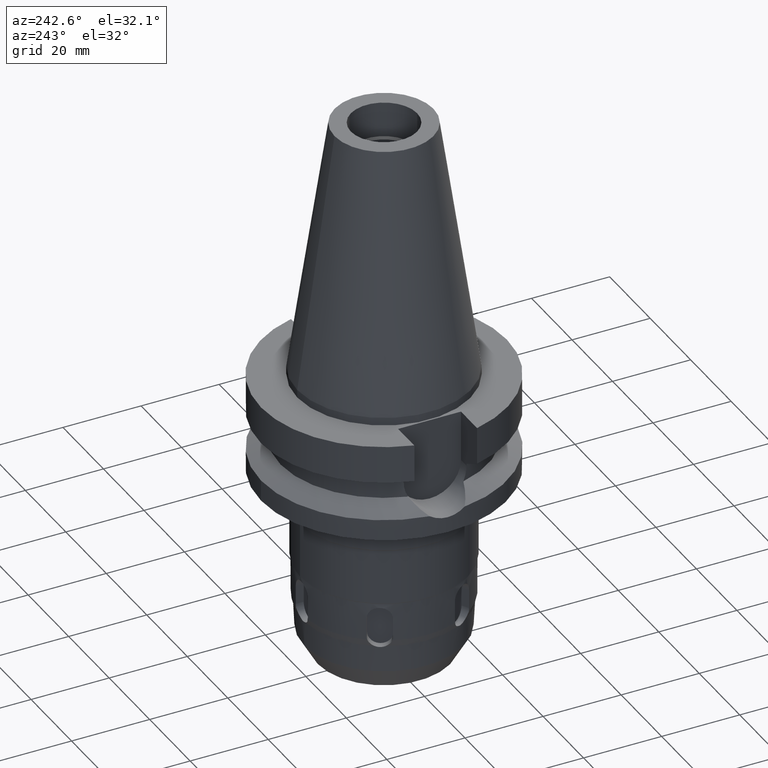
[diagram: clean part render]
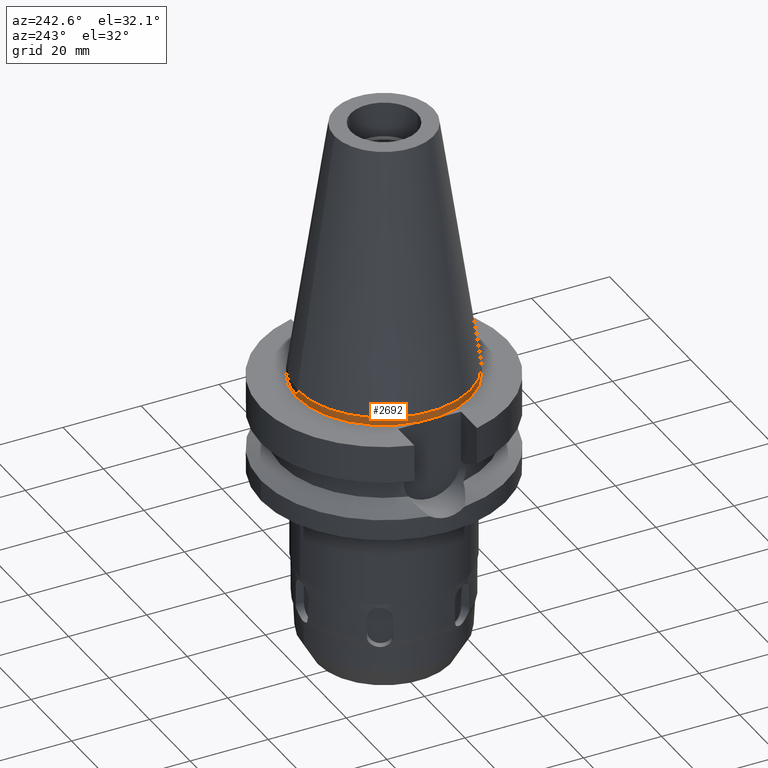
[diagram: same view with one face highlighted and labeled with its STEP entity id]
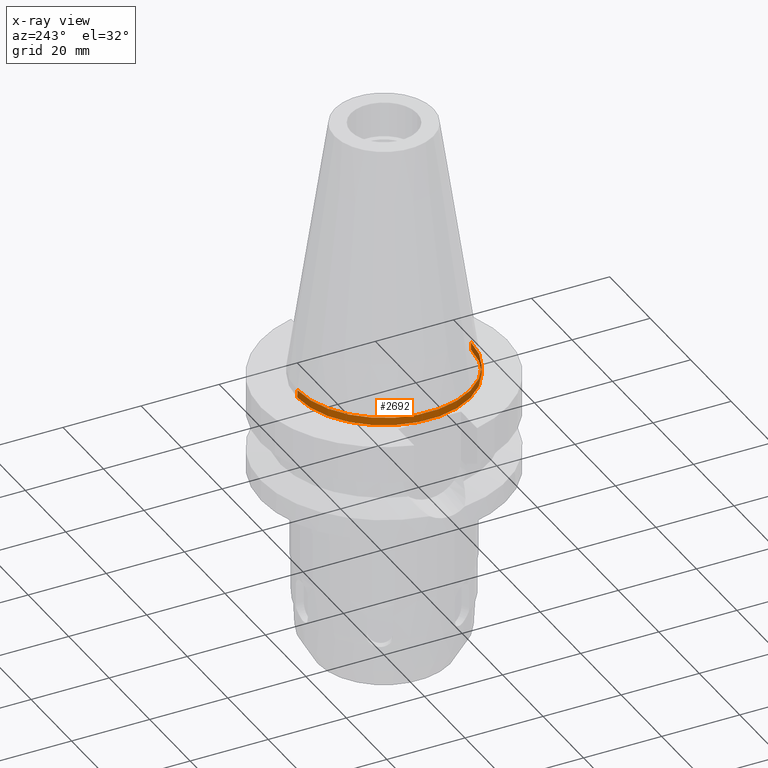
[diagram: x-ray of the same camera — body ghosted, the highlighted face saturated]
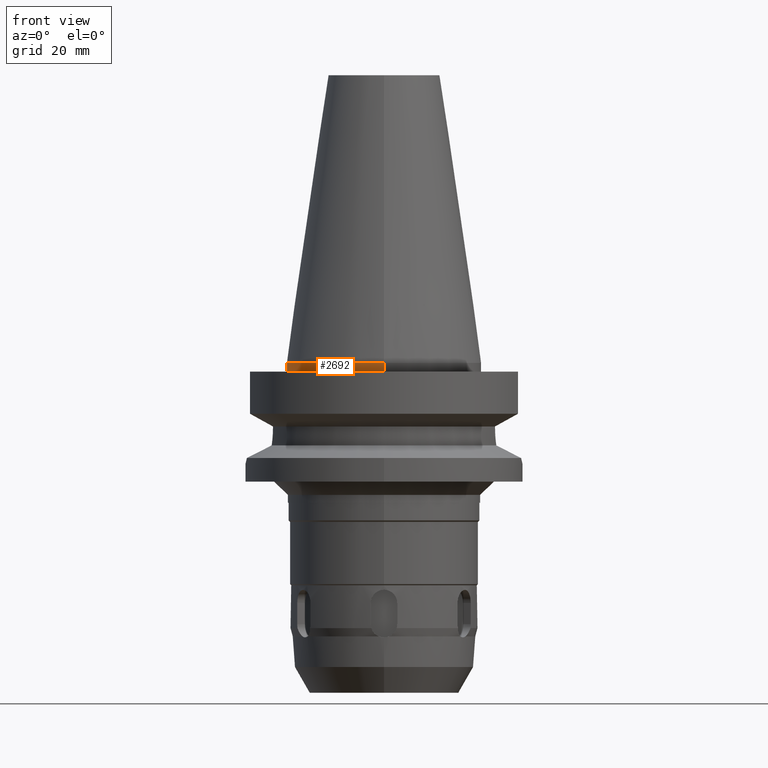
[diagram: same view with one face highlighted and labeled with its STEP entity id]
A machine part, auxiliary view. The second image highlights one B-rep face of the part: STEP entity #2692.
The next image is the same camera in x-ray: the body ghosted, the highlighted face saturated — about 1% of this face is hidden behind the body in this view.
A second angle (front view) of the same face is appended — the face is thin or edge-on in the first view.
In plain terms, the highlighted cylindrical surface (partial cylindrical patch) has radius 22.225 mm, axis along (0, 0, -1).
Its self-contained STEP definition (entity closure, byte-faithful):
#57=CARTESIAN_POINT('',(0.E0,1.625106302469E-14,0.E0));
#58=DIRECTION('',(0.E0,0.E0,-1.E0));
#59=DIRECTION('',(0.E0,-1.E0,0.E0));
#60=AXIS2_PLACEMENT_3D('',#57,#58,#59);
#80=DIRECTION('',(0.E0,8.171241461241E-14,-1.E0));
#81=VECTOR('',#80,2.E0);
#82=CARTESIAN_POINT('',(0.E0,2.2225E1,4.973799150321E-14));
#83=LINE('',#82,#81);
#87=DIRECTION('',(0.E0,-8.704148513061E-14,-1.E0));
#88=VECTOR('',#87,2.E0);
#89=CARTESIAN_POINT('',(0.E0,-2.2225E1,4.973799150321E-14));
#90=LINE('',#89,#88);
#162=CARTESIAN_POINT('',(0.E0,2.111536011090E-14,-2.E0));
#163=DIRECTION('',(0.E0,0.E0,1.E0));
#164=DIRECTION('',(0.E0,1.E0,0.E0));
#165=AXIS2_PLACEMENT_3D('',#162,#163,#164);
#2567=CARTESIAN_POINT('',(0.E0,-2.2225E1,-2.E0));
#2568=CARTESIAN_POINT('',(0.E0,2.2225E1,-2.E0));
#2569=VERTEX_POINT('',#2567);
#2570=VERTEX_POINT('',#2568);
#2571=CARTESIAN_POINT('',(0.E0,2.2225E1,4.973799150321E-14));
#2572=VERTEX_POINT('',#2571);
#2573=CARTESIAN_POINT('',(0.E0,-2.2225E1,4.973799150321E-14));
#2574=VERTEX_POINT('',#2573);
#2680=CARTESIAN_POINT('',(0.E0,2.111536011090E-14,7.242E1));
#2681=DIRECTION('',(0.E0,0.E0,-1.E0));
#2682=DIRECTION('',(0.E0,-1.E0,0.E0));
#2683=AXIS2_PLACEMENT_3D('',#2680,#2681,#2682);
#2684=CYLINDRICAL_SURFACE('',#2683,2.2225E1);
#2685=ORIENTED_EDGE('',*,*,#2670,.F.);
#2686=ORIENTED_EDGE('',*,*,#2647,.F.);
#2687=ORIENTED_EDGE('',*,*,#2674,.T.);
#2689=ORIENTED_EDGE('',*,*,#2688,.F.);
#2690=EDGE_LOOP('',(#2685,#2686,#2687,#2689));
#2691=FACE_OUTER_BOUND('',#2690,.F.);
#61=CIRCLE('',#60,2.2225E1);
#166=CIRCLE('',#165,2.2225E1);
#2647=EDGE_CURVE('',#2574,#2572,#61,.T.);
#2670=EDGE_CURVE('',#2572,#2570,#83,.T.);
#2674=EDGE_CURVE('',#2574,#2569,#90,.T.);
#2688=EDGE_CURVE('',#2570,#2569,#166,.T.);
#2692=ADVANCED_FACE('',(#2691),#2684,.T.);